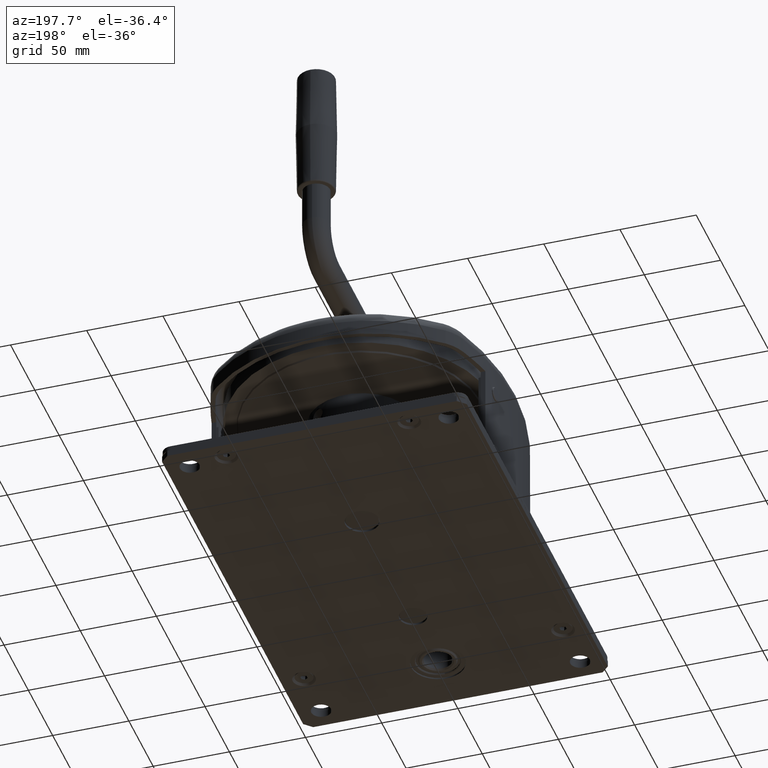
[diagram: clean part render]
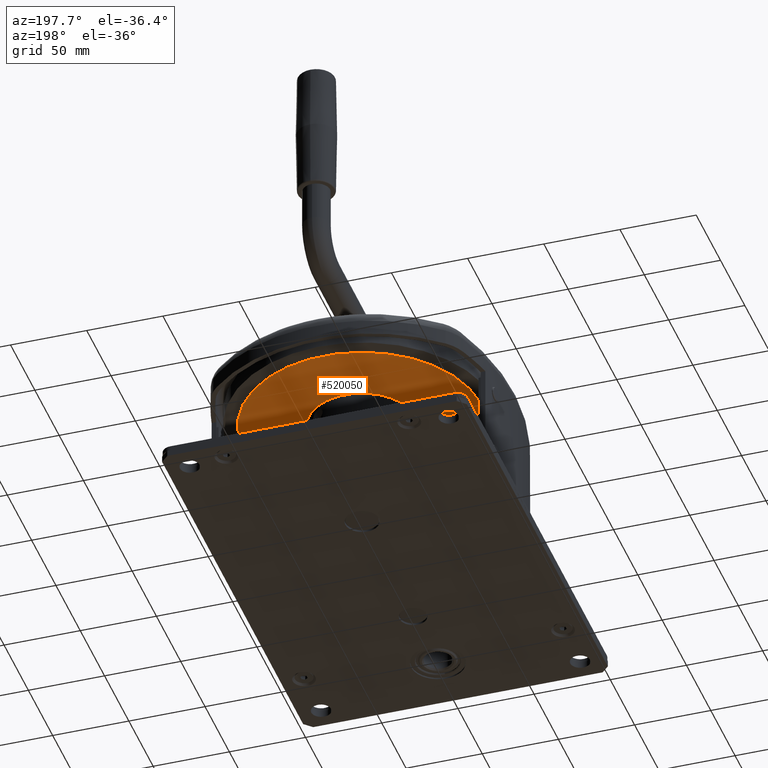
[diagram: same view with one face highlighted and labeled with its STEP entity id]
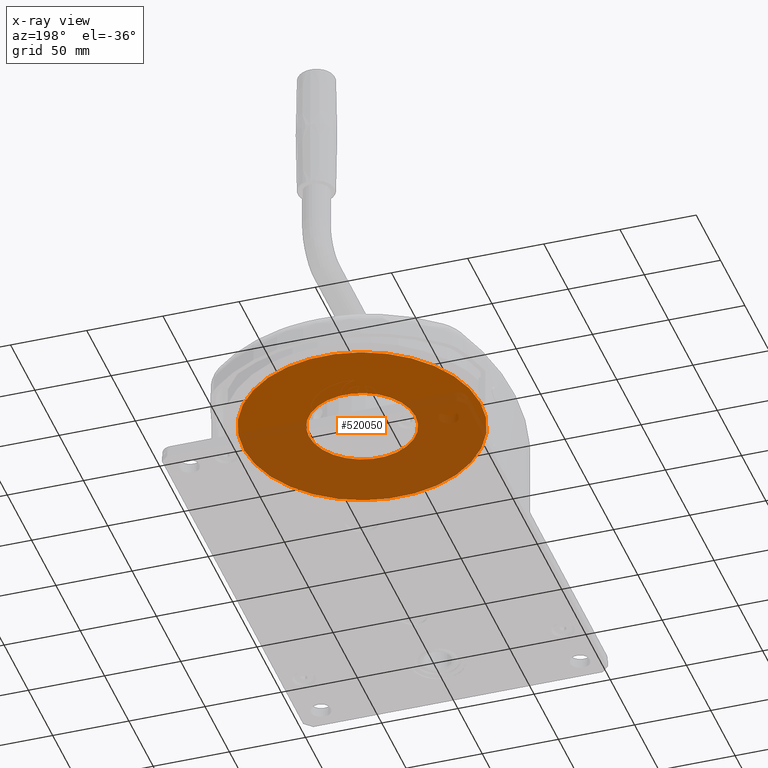
[diagram: x-ray of the same camera — body ghosted, the highlighted face saturated]
A machine part, auxiliary view. The second image highlights one B-rep face of the part: STEP entity #520050.
The next image is the same camera in x-ray: the body ghosted, the highlighted face saturated — about 58% of this face is hidden behind the body in this view.
In plain terms, the highlighted planar face has unit normal (0, 0, -1).
Its self-contained STEP definition (entity closure, byte-faithful):
#519700=CARTESIAN_POINT('',(0.,0.,13.));
#519710=DIRECTION('',(0.,0.,1.));
#519720=DIRECTION('',(1.,0.,0.));
#519730=AXIS2_PLACEMENT_3D('',#519700,#519710,#519720);
#519740=PLANE('',#519730);
#519750=CARTESIAN_POINT('',(2.20933198253997E-13,-2.84352726748273E-13,
13.));
#519760=DIRECTION('',(-1.11005393228102E-16,1.93760634617884E-18,1.));
#519770=DIRECTION('',(-0.999847695156391,0.0174524064372835,
-1.11022302462516E-16));
#519780=AXIS2_PLACEMENT_3D('',#519750,#519760,#519770);
#519790=CIRCLE('',#519780,35.);
#519800=CARTESIAN_POINT('',(-34.9946693304735,0.610834225304638,13.));
#519810=VERTEX_POINT('',#519800);
#519820=CARTESIAN_POINT('',(34.9946693304739,-0.610834225305211,13.));
#519830=VERTEX_POINT('',#519820);
#519840=EDGE_CURVE('',#519810,#519830,#519790,.T.);
#519850=ORIENTED_EDGE('',*,*,#519840,.F.);
#519860=EDGE_CURVE('',#519830,#519810,#519790,.T.);
#519870=ORIENTED_EDGE('',*,*,#519860,.F.);
#519880=EDGE_LOOP('',(#519870,#519850));
#519890=FACE_BOUND('',#519880,.T.);
#519900=CARTESIAN_POINT('',(0.,0.,13.));
#519910=DIRECTION('',(0.,0.,-1.));
#519920=DIRECTION('',(-1.,1.22460635382238E-16,0.));
#519930=AXIS2_PLACEMENT_3D('',#519900,#519910,#519920);
#519940=CIRCLE('',#519930,78.);
#519950=CARTESIAN_POINT('',(-78.,9.55192955981454E-15,13.));
#519960=VERTEX_POINT('',#519950);
#519970=CARTESIAN_POINT('',(78.,3.15473534811749E-19,13.));
#519980=VERTEX_POINT('',#519970);
#519990=EDGE_CURVE('',#519960,#519980,#519940,.T.);
#520000=ORIENTED_EDGE('',*,*,#519990,.F.);
#520010=EDGE_CURVE('',#519980,#519960,#519940,.T.);
#520020=ORIENTED_EDGE('',*,*,#520010,.F.);
#520030=EDGE_LOOP('',(#520020,#520000));
#520040=FACE_OUTER_BOUND('',#520030,.T.);
#520050=ADVANCED_FACE('',(#519890,#520040),#519740,.T.);